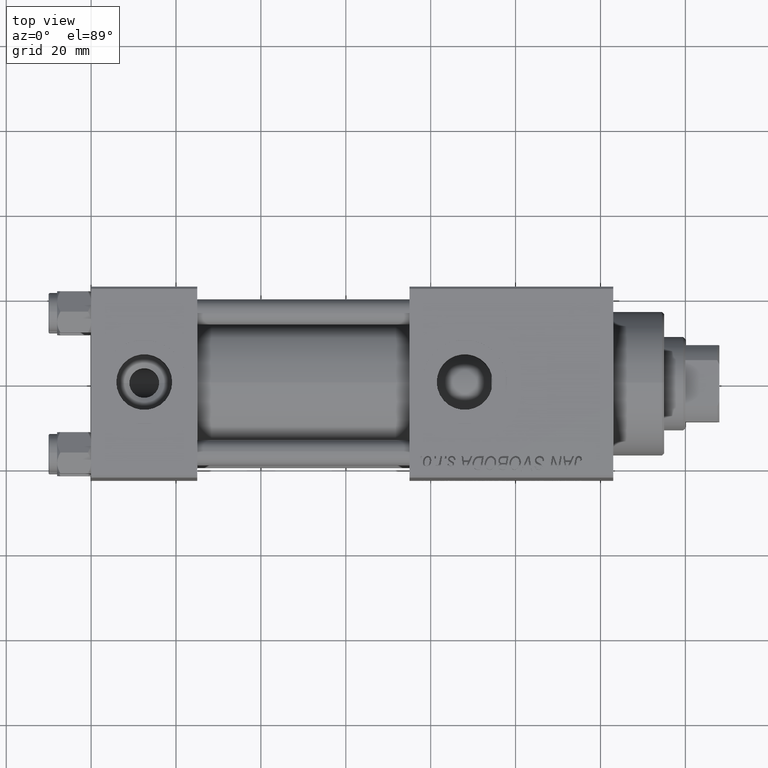
[diagram: clean part render]
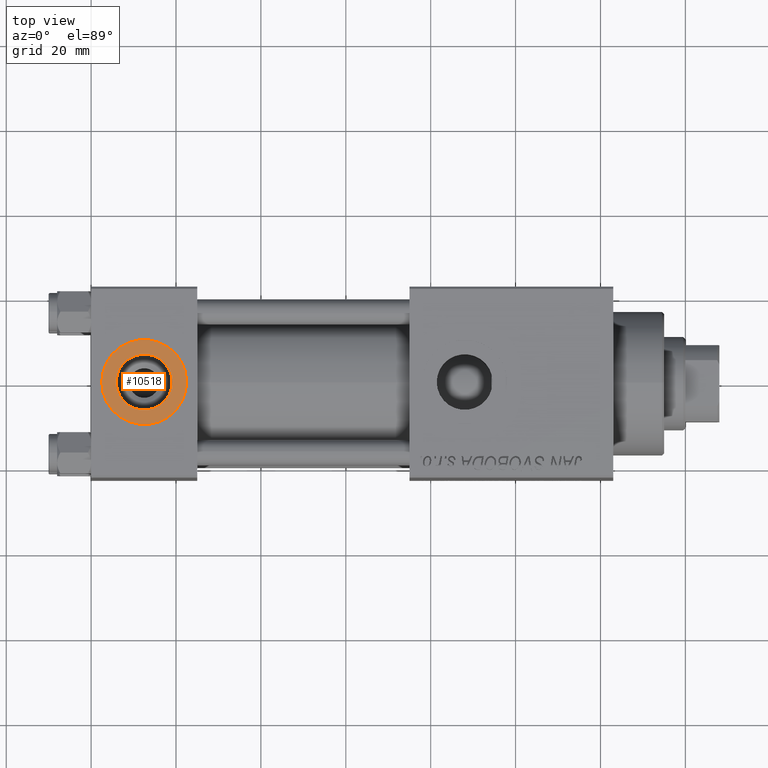
[diagram: same view with one face highlighted and labeled with its STEP entity id]
A machine part, top view. The second image highlights one B-rep face of the part: STEP entity #10518.
In plain terms, the highlighted planar face has unit normal (0, 0, 1).
Its self-contained STEP definition (entity closure, byte-faithful):
#227 = CARTESIAN_POINT ( 'NONE',  ( 12.50000000000000000, -1.734723475976807094E-15, 22.30000000000000071 ) ) ;
#2909 = DIRECTION ( 'NONE',  ( 1.000000000000000000, 0.000000000000000000, 0.000000000000000000 ) ) ;
#3773 = AXIS2_PLACEMENT_3D ( 'NONE', #14978, #38844, #2909 ) ;
#5385 = CARTESIAN_POINT ( 'NONE',  ( 12.50000000000000000, -1.734723475976807094E-15, 22.30000000000000071 ) ) ;
#5576 = PLANE ( 'NONE',  #23688 ) ;
#5754 = CIRCLE ( 'NONE', #9141, 6.579999999999999183 ) ;
#6087 = CARTESIAN_POINT ( 'NONE',  ( 12.50000000000000000, -1.734723475976807094E-15, 22.30000000000000071 ) ) ;
#7923 = EDGE_CURVE ( 'NONE', #38993, #20762, #22772, .T. ) ;
#8859 = ORIENTED_EDGE ( 'NONE', *, *, #32368, .F. ) ;
#9141 = AXIS2_PLACEMENT_3D ( 'NONE', #5385, #36863, #48920 ) ;
#10286 = FACE_BOUND ( 'NONE', #21942, .T. ) ;
#10518 = ADVANCED_FACE ( 'NONE', ( #10286, #14220 ), #5576, .T. ) ;
#12040 = DIRECTION ( 'NONE',  ( 0.000000000000000000, 0.000000000000000000, 1.000000000000000000 ) ) ;
#14220 = FACE_OUTER_BOUND ( 'NONE', #43759, .T. ) ;
#14943 = CARTESIAN_POINT ( 'NONE',  ( 19.07999999999999829, -1.734723475976807094E-15, 22.30000000000000071 ) ) ;
#14978 = CARTESIAN_POINT ( 'NONE',  ( 12.50000000000000000, -1.734723475976807094E-15, 22.30000000000000071 ) ) ;
#18439 = VERTEX_POINT ( 'NONE', #27953 ) ;
#19120 = DIRECTION ( 'NONE',  ( 1.000000000000000000, 0.000000000000000000, 0.000000000000000000 ) ) ;
#20762 = VERTEX_POINT ( 'NONE', #14943 ) ;
#21590 = DIRECTION ( 'NONE',  ( 0.000000000000000000, 0.000000000000000000, 1.000000000000000000 ) ) ;
#21942 = EDGE_LOOP ( 'NONE', ( #8859, #48345 ) ) ;
#22093 = DIRECTION ( 'NONE',  ( 1.000000000000000000, 0.000000000000000000, -0.000000000000000000 ) ) ;
#22544 = ORIENTED_EDGE ( 'NONE', *, *, #36071, .T. ) ;
#22772 = CIRCLE ( 'NONE', #50391, 6.579999999999999183 ) ;
#23688 = AXIS2_PLACEMENT_3D ( 'NONE', #6087, #21590, #22093 ) ;
#27651 = VERTEX_POINT ( 'NONE', #38733 ) ;
#27953 = CARTESIAN_POINT ( 'NONE',  ( 2.500000000000003997, -5.100766768294543310E-16, 22.30000000000000071 ) ) ;
#28900 = DIRECTION ( 'NONE',  ( 1.000000000000000000, 0.000000000000000000, 0.000000000000000000 ) ) ;
#32368 = EDGE_CURVE ( 'NONE', #20762, #38993, #5754, .T. ) ;
#33072 = DIRECTION ( 'NONE',  ( 0.000000000000000000, 0.000000000000000000, 1.000000000000000000 ) ) ;
#36071 = EDGE_CURVE ( 'NONE', #27651, #18439, #45603, .T. ) ;
#36863 = DIRECTION ( 'NONE',  ( 0.000000000000000000, 0.000000000000000000, 1.000000000000000000 ) ) ;
#38733 = CARTESIAN_POINT ( 'NONE',  ( 22.50000000000000000, -1.734723475976807094E-15, 22.30000000000000071 ) ) ;
#38844 = DIRECTION ( 'NONE',  ( 0.000000000000000000, 0.000000000000000000, 1.000000000000000000 ) ) ;
#38993 = VERTEX_POINT ( 'NONE', #44460 ) ;
#41772 = ORIENTED_EDGE ( 'NONE', *, *, #50159, .T. ) ;
#43759 = EDGE_LOOP ( 'NONE', ( #22544, #41772 ) ) ;
#44460 = CARTESIAN_POINT ( 'NONE',  ( 5.920000000000002593, -9.289058821378490386E-16, 22.30000000000000071 ) ) ;
#45156 = CIRCLE ( 'NONE', #48493, 9.999999999999998224 ) ;
#45603 = CIRCLE ( 'NONE', #3773, 9.999999999999998224 ) ;
#48345 = ORIENTED_EDGE ( 'NONE', *, *, #7923, .F. ) ;
#48493 = AXIS2_PLACEMENT_3D ( 'NONE', #49571, #33072, #28900 ) ;
#48920 = DIRECTION ( 'NONE',  ( 1.000000000000000000, 0.000000000000000000, 0.000000000000000000 ) ) ;
#49571 = CARTESIAN_POINT ( 'NONE',  ( 12.50000000000000000, -1.734723475976807094E-15, 22.30000000000000071 ) ) ;
#50159 = EDGE_CURVE ( 'NONE', #18439, #27651, #45156, .T. ) ;
#50391 = AXIS2_PLACEMENT_3D ( 'NONE', #227, #12040, #19120 ) ;